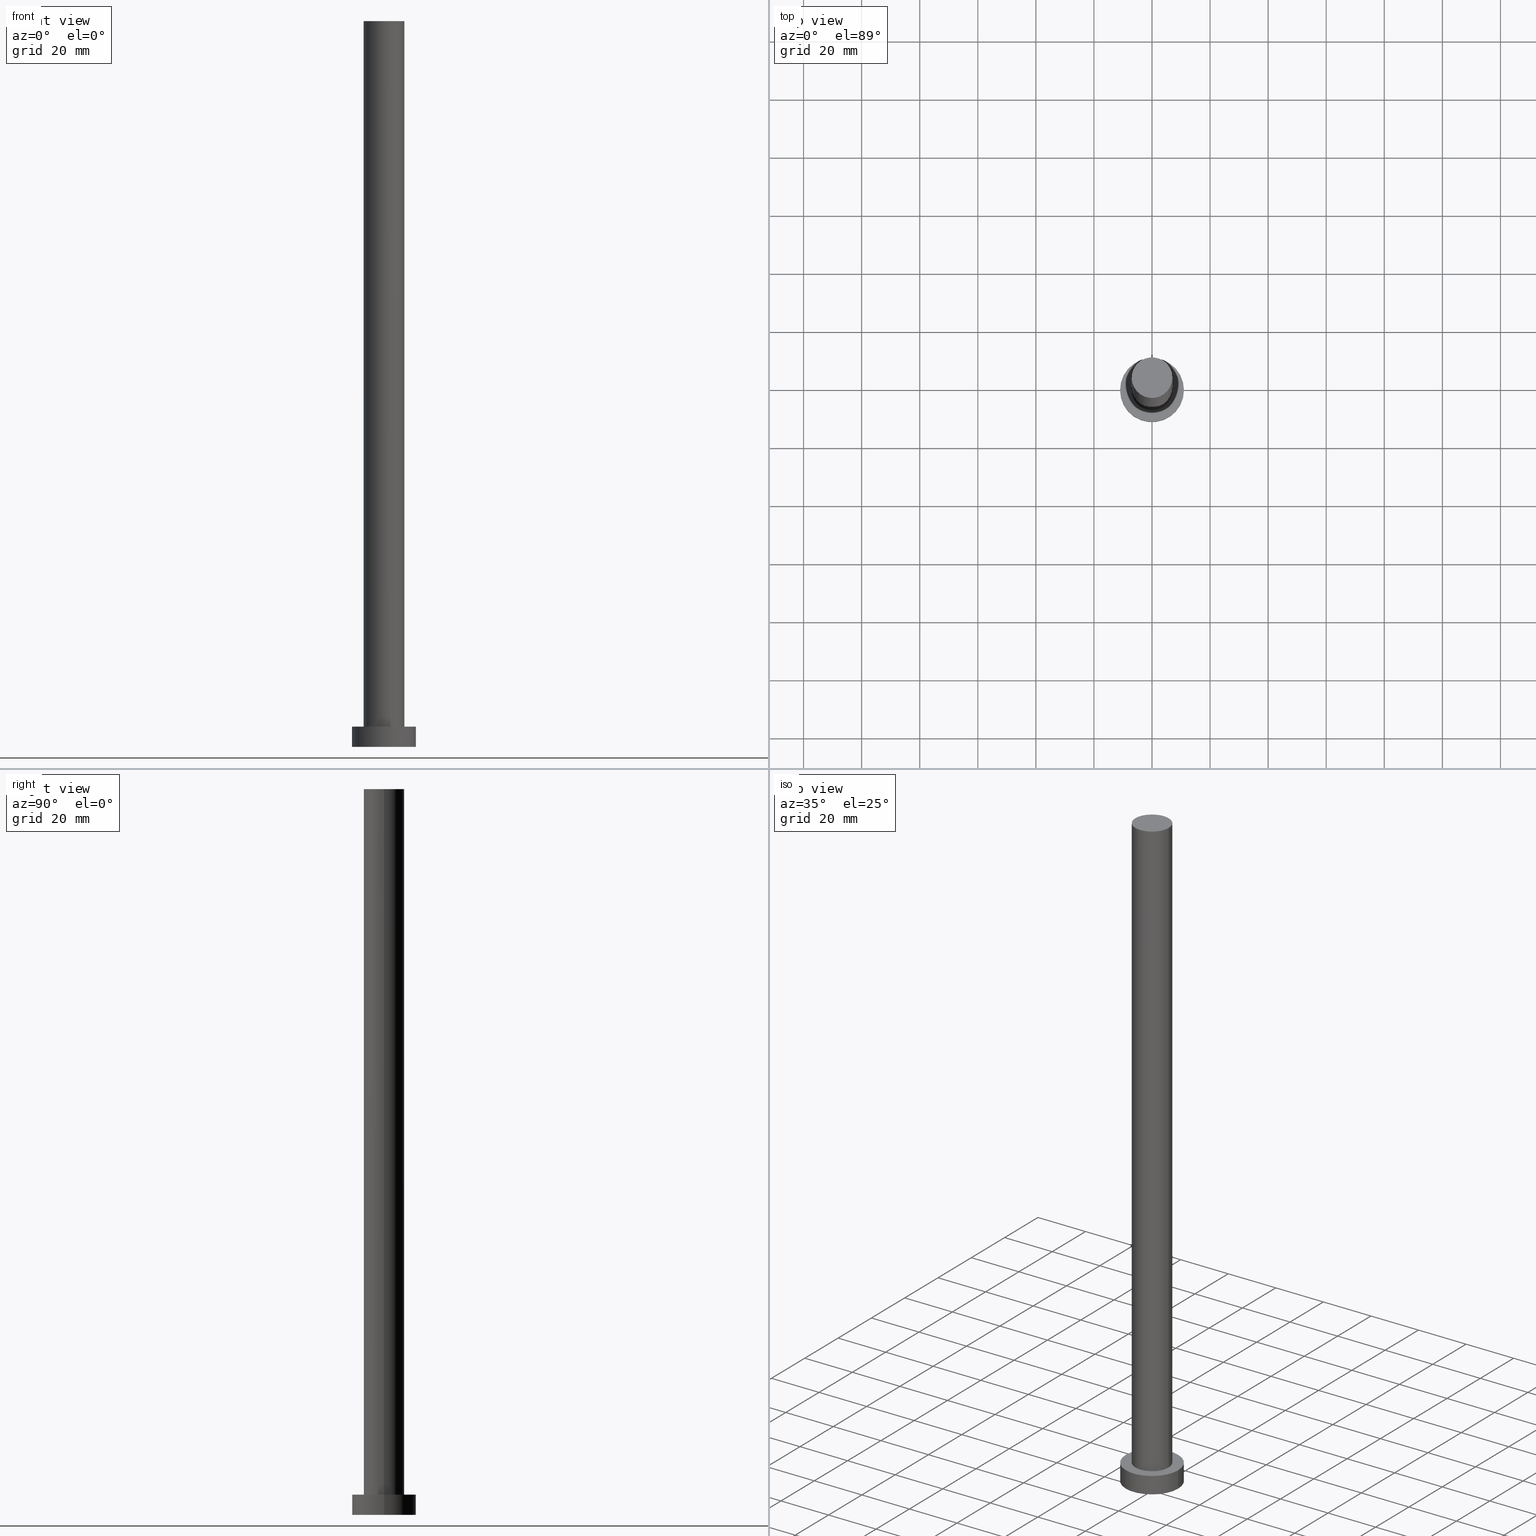
[diagram: canonical four-view strip — front | top / right | iso, engineering-drawing reading convention]
A machine part, canonical four-view strip (front | top / right | iso — engineering-drawing reading convention). The complete STEP part file that produces these views, byte-faithful:
ISO-10303-21;
HEADER;
FILE_DESCRIPTION (( 'STEP AP203' ),
    '1' );
FILE_NAME ('2f1d.STEP',
    '2023-02-13T10:43:04',
    ( '' ),
    ( '' ),
    'SwSTEP 2.0',
    'SolidWorks 2019',
    '' );
FILE_SCHEMA (( 'CONFIG_CONTROL_DESIGN' ));
ENDSEC;

DATA;
#1 = DIRECTION ( 'NONE',  ( 1.000000000000000000, 0.000000000000000000, 0.000000000000000000 ) ) ;
#2 = VERTEX_POINT ( 'NONE', #172 ) ;
#3 = APPROVAL_DATE_TIME ( #165, #199 ) ;
#4 = AXIS2_PLACEMENT_3D ( 'NONE', #34, #115, #185 ) ;
#5 = ORIENTED_EDGE ( 'NONE', *, *, #82, .T. ) ;
#6 = EDGE_CURVE ( 'NONE', #127, #255, #124, .T. ) ;
#7 = SECURITY_CLASSIFICATION_LEVEL ( 'unclassified' ) ;
#8 = ORIENTED_EDGE ( 'NONE', *, *, #95, .F. ) ;
#9 = EDGE_CURVE ( 'NONE', #216, #246, #175, .T. ) ;
#10 = PRODUCT_DEFINITION_SHAPE ( 'NONE', 'NONE',  #237 ) ;
#11 = CC_DESIGN_PERSON_AND_ORGANIZATION_ASSIGNMENT ( #111, #233, ( #221 ) ) ;
#12 = CARTESIAN_POINT ( 'NONE',  ( -11.00000000000000000, 0.000000000000000000, 7.000000000000000000 ) ) ;
#13 = DIRECTION ( 'NONE',  ( 0.000000000000000000, 0.000000000000000000, 1.000000000000000000 ) ) ;
#14 = CIRCLE ( 'NONE', #129, 11.00000000000000000 ) ;
#15 = CC_DESIGN_PERSON_AND_ORGANIZATION_ASSIGNMENT ( #182, #154, ( #74 ) ) ;
#16 = FACE_OUTER_BOUND ( 'NONE', #37, .T. ) ;
#17 = UNCERTAINTY_MEASURE_WITH_UNIT (LENGTH_MEASURE( 1.000000000000000082E-05 ), #208, 'distance_accuracy_value', 'NONE');
#18 = CARTESIAN_POINT ( 'NONE',  ( 0.000000000000000000, 0.000000000000000000, 0.000000000000000000 ) ) ;
#19 = DIRECTION ( 'NONE',  ( -0.000000000000000000, -0.000000000000000000, -1.000000000000000000 ) ) ;
#20 = DIRECTION ( 'NONE',  ( -0.000000000000000000, -0.000000000000000000, -1.000000000000000000 ) ) ;
#21 = CARTESIAN_POINT ( 'NONE',  ( 0.000000000000000000, 0.000000000000000000, 250.0000000000000000 ) ) ;
#22 = EDGE_CURVE ( 'NONE', #255, #2, #184, .T. ) ;
#23 = CC_DESIGN_PERSON_AND_ORGANIZATION_ASSIGNMENT ( #47, #186, ( #76 ) ) ;
#24 = DIRECTION ( 'NONE',  ( -0.000000000000000000, -0.000000000000000000, -1.000000000000000000 ) ) ;
#25 = APPLICATION_PROTOCOL_DEFINITION ( 'international standard', 'config_control_design', 1994, #59 ) ;
#26 = PERSON_AND_ORGANIZATION ( #243, #55 ) ;
#27 = CALENDAR_DATE ( 2023, 13, 2 ) ;
#28 = CIRCLE ( 'NONE', #35, 7.000000000000000000 ) ;
#29 = ORIENTED_EDGE ( 'NONE', *, *, #187, .F. ) ;
#30 = ORIENTED_EDGE ( 'NONE', *, *, #128, .T. ) ;
#31 = APPROVAL_PERSON_ORGANIZATION ( #48, #212, #73 ) ;
#32 = PERSON_AND_ORGANIZATION ( #243, #55 ) ;
#33 = ORIENTED_EDGE ( 'NONE', *, *, #6, .T. ) ;
#34 = CARTESIAN_POINT ( 'NONE',  ( 0.000000000000000000, 0.000000000000000000, 250.0000000000000000 ) ) ;
#35 = AXIS2_PLACEMENT_3D ( 'NONE', #145, #158, #39 ) ;
#36 = CARTESIAN_POINT ( 'NONE',  ( 0.000000000000000000, 0.000000000000000000, 7.000000000000000000 ) ) ;
#37 = EDGE_LOOP ( 'NONE', ( #84, #45, #62, #54 ) ) ;
#38 = CARTESIAN_POINT ( 'NONE',  ( 0.000000000000000000, 0.000000000000000000, 7.000000000000000000 ) ) ;
#39 = DIRECTION ( 'NONE',  ( 1.000000000000000000, 0.000000000000000000, 0.000000000000000000 ) ) ;
#40 = AXIS2_PLACEMENT_3D ( 'NONE', #18, #188, #1 ) ;
#41 = DIRECTION ( 'NONE',  ( -1.000000000000000000, 0.000000000000000000, 0.000000000000000000 ) ) ;
#42 = CARTESIAN_POINT ( 'NONE',  ( -11.00000000000000000, 0.000000000000000000, 0.000000000000000000 ) ) ;
#43 = CC_DESIGN_PERSON_AND_ORGANIZATION_ASSIGNMENT ( #197, #68, ( #221 ) ) ;
#44 = VECTOR ( 'NONE', #192, 1000.000000000000000 ) ;
#45 = ORIENTED_EDGE ( 'NONE', *, *, #147, .T. ) ;
#46 = ORIENTED_EDGE ( 'NONE', *, *, #9, .F. ) ;
#47 = PERSON_AND_ORGANIZATION ( #243, #55 ) ;
#48 = PERSON_AND_ORGANIZATION ( #243, #55 ) ;
#49 = AXIS2_PLACEMENT_3D ( 'NONE', #140, #97, #176 ) ;
#50 = LOCAL_TIME ( 11, 43, 4.000000000000000000, #126 ) ;
#51 = ORIENTED_EDGE ( 'NONE', *, *, #22, .F. ) ;
#52 = CALENDAR_DATE ( 2023, 13, 2 ) ;
#53 = EDGE_CURVE ( 'NONE', #139, #226, #28, .T. ) ;
#54 = ORIENTED_EDGE ( 'NONE', *, *, #91, .F. ) ;
#55 = ORGANIZATION ( 'NEUR�EN�', 'NEUR�EN�', '' ) ;
#56 = DIRECTION ( 'NONE',  ( -0.000000000000000000, -0.000000000000000000, -1.000000000000000000 ) ) ;
#57 = CARTESIAN_POINT ( 'NONE',  ( -7.000000000000000000, 0.000000000000000000, 250.0000000000000000 ) ) ;
#58 = DATE_AND_TIME ( #86, #142 ) ;
#59 = APPLICATION_CONTEXT ( 'configuration controlled 3d designs of mechanical parts and assemblies' ) ;
#60 = DIRECTION ( 'NONE',  ( -0.000000000000000000, -0.000000000000000000, -1.000000000000000000 ) ) ;
#61 = DIRECTION ( 'NONE',  ( 0.000000000000000000, 0.000000000000000000, 1.000000000000000000 ) ) ;
#62 = ORIENTED_EDGE ( 'NONE', *, *, #53, .T. ) ;
#63 = CARTESIAN_POINT ( 'NONE',  ( 0.000000000000000000, 0.000000000000000000, 7.000000000000000000 ) ) ;
#64 = CYLINDRICAL_SURFACE ( 'NONE', #49, 11.00000000000000000 ) ;
#65 = DIRECTION ( 'NONE',  ( 0.000000000000000000, 0.000000000000000000, 1.000000000000000000 ) ) ;
#66 = CARTESIAN_POINT ( 'NONE',  ( 0.000000000000000000, 0.000000000000000000, 7.000000000000000000 ) ) ;
#67 = DATE_AND_TIME ( #236, #87 ) ;
#68 = PERSON_AND_ORGANIZATION_ROLE ( 'creator' ) ;
#69 = APPROVAL_ROLE ( '' ) ;
#70 = EDGE_LOOP ( 'NONE', ( #88, #131, #198, #81 ) ) ;
#71 = ORIENTED_EDGE ( 'NONE', *, *, #147, .F. ) ;
#72 = ADVANCED_FACE ( 'NONE', ( #195 ), #190, .T. ) ;
#73 = APPROVAL_ROLE ( '' ) ;
#74 = PRODUCT ( '2f1d', '2f1d', '', ( #244 ) ) ;
#75 = DIRECTION ( 'NONE',  ( 1.000000000000000000, 0.000000000000000000, 0.000000000000000000 ) ) ;
#76 = SECURITY_CLASSIFICATION ( '', '', #7 ) ;
#77 = ADVANCED_FACE ( 'NONE', ( #108 ), #89, .T. ) ;
#78 = ADVANCED_FACE ( 'NONE', ( #161 ), #144, .F. ) ;
#79 = DIRECTION ( 'NONE',  ( 1.000000000000000000, 0.000000000000000000, 0.000000000000000000 ) ) ;
#80 = CARTESIAN_POINT ( 'NONE',  ( -7.000000000000000000, 0.000000000000000000, 7.000000000000000000 ) ) ;
#81 = ORIENTED_EDGE ( 'NONE', *, *, #6, .F. ) ;
#82 = EDGE_CURVE ( 'NONE', #127, #98, #194, .T. ) ;
#83 = AXIS2_PLACEMENT_3D ( 'NONE', #92, #13, #75 ) ;
#84 = ORIENTED_EDGE ( 'NONE', *, *, #128, .F. ) ;
#85 = APPLICATION_CONTEXT ( 'configuration controlled 3d designs of mechanical parts and assemblies' ) ;
#86 = CALENDAR_DATE ( 2023, 13, 2 ) ;
#87 = LOCAL_TIME ( 11, 43, 4.000000000000000000, #162 ) ;
#88 = ORIENTED_EDGE ( 'NONE', *, *, #164, .F. ) ;
#89 = PLANE ( 'NONE',  #135 ) ;
#90 = EDGE_LOOP ( 'NONE', ( #5, #113 ) ) ;
#91 = EDGE_CURVE ( 'NONE', #216, #226, #193, .T. ) ;
#92 = CARTESIAN_POINT ( 'NONE',  ( 0.000000000000000000, 0.000000000000000000, 0.000000000000000000 ) ) ;
#93 = CARTESIAN_POINT ( 'NONE',  ( 7.000000000000000000, 8.572527594031473190E-16, 7.000000000000000000 ) ) ;
#94 = ORIENTED_EDGE ( 'NONE', *, *, #91, .T. ) ;
#95 = EDGE_CURVE ( 'NONE', #226, #139, #132, .T. ) ;
#96 = CIRCLE ( 'NONE', #40, 11.00000000000000000 ) ;
#97 = DIRECTION ( 'NONE',  ( -0.000000000000000000, -0.000000000000000000, -1.000000000000000000 ) ) ;
#98 = VERTEX_POINT ( 'NONE', #138 ) ;
#99 = ADVANCED_FACE ( 'NONE', ( #254, #157 ), #228, .T. ) ;
#100 = DIRECTION ( 'NONE',  ( 1.000000000000000000, 0.000000000000000000, -0.000000000000000000 ) ) ;
#101 = AXIS2_PLACEMENT_3D ( 'NONE', #102, #231, #234 ) ;
#102 = CARTESIAN_POINT ( 'NONE',  ( 0.000000000000000000, 0.000000000000000000, 0.000000000000000000 ) ) ;
#103 = VECTOR ( 'NONE', #56, 1000.000000000000000 ) ;
#104 = PERSON_AND_ORGANIZATION ( #243, #55 ) ;
#105 = APPROVAL_STATUS ( 'not_yet_approved' ) ;
#106 = ORIENTED_EDGE ( 'NONE', *, *, #9, .T. ) ;
#107 = CALENDAR_DATE ( 2023, 13, 2 ) ;
#108 = FACE_OUTER_BOUND ( 'NONE', #238, .T. ) ;
#109 = CC_DESIGN_APPROVAL ( #199, ( #221 ) ) ;
#110 = DIRECTION ( 'NONE',  ( -1.000000000000000000, 0.000000000000000000, 0.000000000000000000 ) ) ;
#111 = PERSON_AND_ORGANIZATION ( #243, #55 ) ;
#112 = PERSON_AND_ORGANIZATION_ROLE ( 'creator' ) ;
#113 = ORIENTED_EDGE ( 'NONE', *, *, #164, .T. ) ;
#114 = ORIENTED_EDGE ( 'NONE', *, *, #53, .F. ) ;
#115 = DIRECTION ( 'NONE',  ( 0.000000000000000000, 0.000000000000000000, 1.000000000000000000 ) ) ;
#116 = AXIS2_PLACEMENT_3D ( 'NONE', #121, #19, #110 ) ;
#117 = DIRECTION ( 'NONE',  ( 0.000000000000000000, 0.000000000000000000, 1.000000000000000000 ) ) ;
#118 = LOCAL_TIME ( 11, 43, 4.000000000000000000, #133 ) ;
#119 = CIRCLE ( 'NONE', #4, 7.000000000000000000 ) ;
#120 = FACE_OUTER_BOUND ( 'NONE', #200, .T. ) ;
#121 = CARTESIAN_POINT ( 'NONE',  ( 0.000000000000000000, 0.000000000000000000, 250.0000000000000000 ) ) ;
#122 = DIRECTION ( 'NONE',  ( 1.000000000000000000, 0.000000000000000000, 0.000000000000000000 ) ) ;
#123 = CC_DESIGN_APPROVAL ( #181, ( #237 ) ) ;
#124 = LINE ( 'NONE', #125, #44 ) ;
#125 = CARTESIAN_POINT ( 'NONE',  ( -11.00000000000000000, 0.000000000000000000, 7.000000000000000000 ) ) ;
#126 = COORDINATED_UNIVERSAL_TIME_OFFSET ( 1, 0, .AHEAD. ) ;
#127 = VERTEX_POINT ( 'NONE', #12 ) ;
#128 = EDGE_CURVE ( 'NONE', #246, #216, #119, .T. ) ;
#129 = AXIS2_PLACEMENT_3D ( 'NONE', #36, #117, #137 ) ;
#130 = EDGE_LOOP ( 'NONE', ( #8, #114 ) ) ;
#131 = ORIENTED_EDGE ( 'NONE', *, *, #187, .T. ) ;
#132 = CIRCLE ( 'NONE', #241, 7.000000000000000000 ) ;
#133 = COORDINATED_UNIVERSAL_TIME_OFFSET ( 1, 0, .AHEAD. ) ;
#134 = CC_DESIGN_DATE_AND_TIME_ASSIGNMENT ( #149, #217, ( #237 ) ) ;
#135 = AXIS2_PLACEMENT_3D ( 'NONE', #245, #239, #100 ) ;
#136 = CC_DESIGN_PERSON_AND_ORGANIZATION_ASSIGNMENT ( #104, #112, ( #237 ) ) ;
#137 = DIRECTION ( 'NONE',  ( 1.000000000000000000, 0.000000000000000000, 0.000000000000000000 ) ) ;
#138 = CARTESIAN_POINT ( 'NONE',  ( 11.00000000000000000, 1.347111479062088405E-15, 7.000000000000000000 ) ) ;
#139 = VERTEX_POINT ( 'NONE', #93 ) ;
#140 = CARTESIAN_POINT ( 'NONE',  ( 0.000000000000000000, 0.000000000000000000, 7.000000000000000000 ) ) ;
#141 = DIRECTION ( 'NONE',  ( 1.000000000000000000, 0.000000000000000000, 0.000000000000000000 ) ) ;
#142 = LOCAL_TIME ( 11, 43, 4.000000000000000000, #218 ) ;
#143 = LINE ( 'NONE', #252, #167 ) ;
#144 = PLANE ( 'NONE',  #101 ) ;
#145 = CARTESIAN_POINT ( 'NONE',  ( 0.000000000000000000, 0.000000000000000000, 7.000000000000000000 ) ) ;
#146 = APPROVAL_DATE_TIME ( #67, #181 ) ;
#147 = EDGE_CURVE ( 'NONE', #246, #139, #250, .T. ) ;
#148 = ORIENTED_EDGE ( 'NONE', *, *, #82, .F. ) ;
#149 = DATE_AND_TIME ( #27, #50 ) ;
#150 = APPLICATION_PROTOCOL_DEFINITION ( 'international standard', 'config_control_design', 1994, #85 ) ;
#151 = APPROVAL_STATUS ( 'not_yet_approved' ) ;
#152 = ADVANCED_BREP_SHAPE_REPRESENTATION ( '2f1d', ( #227, #83 ), #205 ) ;
#153 = DIRECTION ( 'NONE',  ( 1.000000000000000000, 0.000000000000000000, 0.000000000000000000 ) ) ;
#154 = PERSON_AND_ORGANIZATION_ROLE ( 'design_owner' ) ;
#155 = DATE_TIME_ROLE ( 'classification_date' ) ;
#156 = AXIS2_PLACEMENT_3D ( 'NONE', #66, #211, #122 ) ;
#157 = FACE_OUTER_BOUND ( 'NONE', #90, .T. ) ;
#158 = DIRECTION ( 'NONE',  ( 0.000000000000000000, 0.000000000000000000, 1.000000000000000000 ) ) ;
#159 = APPROVAL_PERSON_ORGANIZATION ( #32, #199, #69 ) ;
#160 = CYLINDRICAL_SURFACE ( 'NONE', #201, 7.000000000000000000 ) ;
#161 = FACE_OUTER_BOUND ( 'NONE', #180, .T. ) ;
#162 = COORDINATED_UNIVERSAL_TIME_OFFSET ( 1, 0, .AHEAD. ) ;
#163 = AXIS2_PLACEMENT_3D ( 'NONE', #63, #20, #41 ) ;
#164 = EDGE_CURVE ( 'NONE', #98, #127, #14, .T. ) ;
#165 = DATE_AND_TIME ( #107, #179 ) ;
#166 = APPROVAL_DATE_TIME ( #203, #212 ) ;
#167 = VECTOR ( 'NONE', #60, 1000.000000000000000 ) ;
#168 = DIRECTION ( 'NONE',  ( 0.000000000000000000, 0.000000000000000000, 1.000000000000000000 ) ) ;
#169 = ADVANCED_FACE ( 'NONE', ( #16 ), #160, .T. ) ;
#170 = CLOSED_SHELL ( 'NONE', ( #169, #240, #215, #99, #78, #72, #77 ) ) ;
#171 = EDGE_CURVE ( 'NONE', #2, #255, #96, .T. ) ;
#172 = CARTESIAN_POINT ( 'NONE',  ( 11.00000000000000000, 1.347111479062088405E-15, 0.000000000000000000 ) ) ;
#173 = CARTESIAN_POINT ( 'NONE',  ( -7.000000000000000000, 0.000000000000000000, 250.0000000000000000 ) ) ;
#174 = CARTESIAN_POINT ( 'NONE',  ( 7.000000000000000000, 8.572527594031473190E-16, 250.0000000000000000 ) ) ;
#175 = CIRCLE ( 'NONE', #247, 7.000000000000000000 ) ;
#176 = DIRECTION ( 'NONE',  ( -1.000000000000000000, 0.000000000000000000, 0.000000000000000000 ) ) ;
#177 = APPROVAL_ROLE ( '' ) ;
#178 = APPROVAL_STATUS ( 'not_yet_approved' ) ;
#179 = LOCAL_TIME ( 11, 43, 4.000000000000000000, #214 ) ;
#180 = EDGE_LOOP ( 'NONE', ( #51, #189 ) ) ;
#181 = APPROVAL ( #178, 'NEUR�EN�' ) ;
#182 = PERSON_AND_ORGANIZATION ( #243, #55 ) ;
#183 = DIRECTION ( 'NONE',  ( -0.000000000000000000, -0.000000000000000000, -1.000000000000000000 ) ) ;
#184 = CIRCLE ( 'NONE', #248, 11.00000000000000000 ) ;
#185 = DIRECTION ( 'NONE',  ( 1.000000000000000000, 0.000000000000000000, 0.000000000000000000 ) ) ;
#186 = PERSON_AND_ORGANIZATION_ROLE ( 'classification_officer' ) ;
#187 = EDGE_CURVE ( 'NONE', #98, #2, #143, .T. ) ;
#188 = DIRECTION ( 'NONE',  ( 0.000000000000000000, 0.000000000000000000, 1.000000000000000000 ) ) ;
#189 = ORIENTED_EDGE ( 'NONE', *, *, #171, .F. ) ;
#190 = CYLINDRICAL_SURFACE ( 'NONE', #116, 7.000000000000000000 ) ;
#191 = DIRECTION ( 'NONE',  ( -1.000000000000000000, 0.000000000000000000, 0.000000000000000000 ) ) ;
#192 = DIRECTION ( 'NONE',  ( -0.000000000000000000, -0.000000000000000000, -1.000000000000000000 ) ) ;
#193 = LINE ( 'NONE', #57, #235 ) ;
#194 = CIRCLE ( 'NONE', #156, 11.00000000000000000 ) ;
#195 = FACE_OUTER_BOUND ( 'NONE', #207, .T. ) ;
#196 = CC_DESIGN_APPROVAL ( #212, ( #76 ) ) ;
#197 = PERSON_AND_ORGANIZATION ( #243, #55 ) ;
#198 = ORIENTED_EDGE ( 'NONE', *, *, #171, .T. ) ;
#199 = APPROVAL ( #105, 'NEUR�EN�' ) ;
#200 = EDGE_LOOP ( 'NONE', ( #29, #148, #33, #204 ) ) ;
#201 = AXIS2_PLACEMENT_3D ( 'NONE', #210, #24, #191 ) ;
#202 = CC_DESIGN_SECURITY_CLASSIFICATION ( #76, ( #221 ) ) ;
#203 = DATE_AND_TIME ( #52, #118 ) ;
#204 = ORIENTED_EDGE ( 'NONE', *, *, #22, .T. ) ;
#205 =( GEOMETRIC_REPRESENTATION_CONTEXT ( 3 ) GLOBAL_UNCERTAINTY_ASSIGNED_CONTEXT ( ( #17 ) ) GLOBAL_UNIT_ASSIGNED_CONTEXT ( ( #208, #224, #220 ) ) REPRESENTATION_CONTEXT ( 'NONE', 'WORKASPACE' ) );
#206 = DIRECTION ( 'NONE',  ( 1.000000000000000000, 0.000000000000000000, -0.000000000000000000 ) ) ;
#207 = EDGE_LOOP ( 'NONE', ( #71, #46, #94, #232 ) ) ;
#208 =( LENGTH_UNIT ( ) NAMED_UNIT ( * ) SI_UNIT ( .MILLI., .METRE. ) );
#209 = FACE_OUTER_BOUND ( 'NONE', #70, .T. ) ;
#210 = CARTESIAN_POINT ( 'NONE',  ( 0.000000000000000000, 0.000000000000000000, 250.0000000000000000 ) ) ;
#211 = DIRECTION ( 'NONE',  ( 0.000000000000000000, 0.000000000000000000, 1.000000000000000000 ) ) ;
#212 = APPROVAL ( #151, 'NEUR�EN�' ) ;
#213 = PRODUCT_RELATED_PRODUCT_CATEGORY ( 'detail', '', ( #74 ) ) ;
#214 = COORDINATED_UNIVERSAL_TIME_OFFSET ( 1, 0, .AHEAD. ) ;
#215 = ADVANCED_FACE ( 'NONE', ( #120 ), #64, .T. ) ;
#216 = VERTEX_POINT ( 'NONE', #173 ) ;
#217 = DATE_TIME_ROLE ( 'creation_date' ) ;
#218 = COORDINATED_UNIVERSAL_TIME_OFFSET ( 1, 0, .AHEAD. ) ;
#219 = AXIS2_PLACEMENT_3D ( 'NONE', #38, #223, #206 ) ;
#220 =( NAMED_UNIT ( * ) SI_UNIT ( $, .STERADIAN. ) SOLID_ANGLE_UNIT ( ) );
#221 = PRODUCT_DEFINITION_FORMATION_WITH_SPECIFIED_SOURCE ( 'LIBOVOLN�', '', #74, .NOT_KNOWN. ) ;
#222 = CC_DESIGN_DATE_AND_TIME_ASSIGNMENT ( #58, #155, ( #76 ) ) ;
#223 = DIRECTION ( 'NONE',  ( 0.000000000000000000, 0.000000000000000000, 1.000000000000000000 ) ) ;
#224 =( NAMED_UNIT ( * ) PLANE_ANGLE_UNIT ( ) SI_UNIT ( $, .RADIAN. ) );
#225 = CARTESIAN_POINT ( 'NONE',  ( 7.000000000000000000, 8.572527594031473190E-16, 250.0000000000000000 ) ) ;
#226 = VERTEX_POINT ( 'NONE', #80 ) ;
#227 = MANIFOLD_SOLID_BREP ( 'P�idat vysunut�m3', #170 ) ;
#228 = PLANE ( 'NONE',  #219 ) ;
#229 = CYLINDRICAL_SURFACE ( 'NONE', #163, 11.00000000000000000 ) ;
#230 = DESIGN_CONTEXT ( 'detailed design', #59, 'design' ) ;
#231 = DIRECTION ( 'NONE',  ( 0.000000000000000000, 0.000000000000000000, 1.000000000000000000 ) ) ;
#232 = ORIENTED_EDGE ( 'NONE', *, *, #95, .T. ) ;
#233 = PERSON_AND_ORGANIZATION_ROLE ( 'design_supplier' ) ;
#234 = DIRECTION ( 'NONE',  ( 1.000000000000000000, 0.000000000000000000, -0.000000000000000000 ) ) ;
#235 = VECTOR ( 'NONE', #183, 1000.000000000000000 ) ;
#236 = CALENDAR_DATE ( 2023, 13, 2 ) ;
#237 = PRODUCT_DEFINITION ( 'NEZN�M�', '', #221, #230 ) ;
#238 = EDGE_LOOP ( 'NONE', ( #106, #30 ) ) ;
#239 = DIRECTION ( 'NONE',  ( 0.000000000000000000, 0.000000000000000000, 1.000000000000000000 ) ) ;
#240 = ADVANCED_FACE ( 'NONE', ( #209 ), #229, .T. ) ;
#241 = AXIS2_PLACEMENT_3D ( 'NONE', #251, #168, #153 ) ;
#242 = SHAPE_DEFINITION_REPRESENTATION ( #10, #152 ) ;
#243 = PERSON ( 'NEUR�EN�', 'NEUR�EN�', 'NEUR�EN�', ('NEUR�EN�'), ('NEUR�EN�'), ('NEUR�EN�') ) ;
#244 = MECHANICAL_CONTEXT ( 'NONE', #85, 'mechanical' ) ;
#245 = CARTESIAN_POINT ( 'NONE',  ( 0.000000000000000000, 0.000000000000000000, 250.0000000000000000 ) ) ;
#246 = VERTEX_POINT ( 'NONE', #174 ) ;
#247 = AXIS2_PLACEMENT_3D ( 'NONE', #21, #61, #141 ) ;
#248 = AXIS2_PLACEMENT_3D ( 'NONE', #253, #65, #79 ) ;
#249 = APPROVAL_PERSON_ORGANIZATION ( #26, #181, #177 ) ;
#250 = LINE ( 'NONE', #225, #103 ) ;
#251 = CARTESIAN_POINT ( 'NONE',  ( 0.000000000000000000, 0.000000000000000000, 7.000000000000000000 ) ) ;
#252 = CARTESIAN_POINT ( 'NONE',  ( 11.00000000000000000, 1.347111479062088405E-15, 7.000000000000000000 ) ) ;
#253 = CARTESIAN_POINT ( 'NONE',  ( 0.000000000000000000, 0.000000000000000000, 0.000000000000000000 ) ) ;
#254 = FACE_BOUND ( 'NONE', #130, .T. ) ;
#255 = VERTEX_POINT ( 'NONE', #42 ) ;
ENDSEC;
END-ISO-10303-21;
